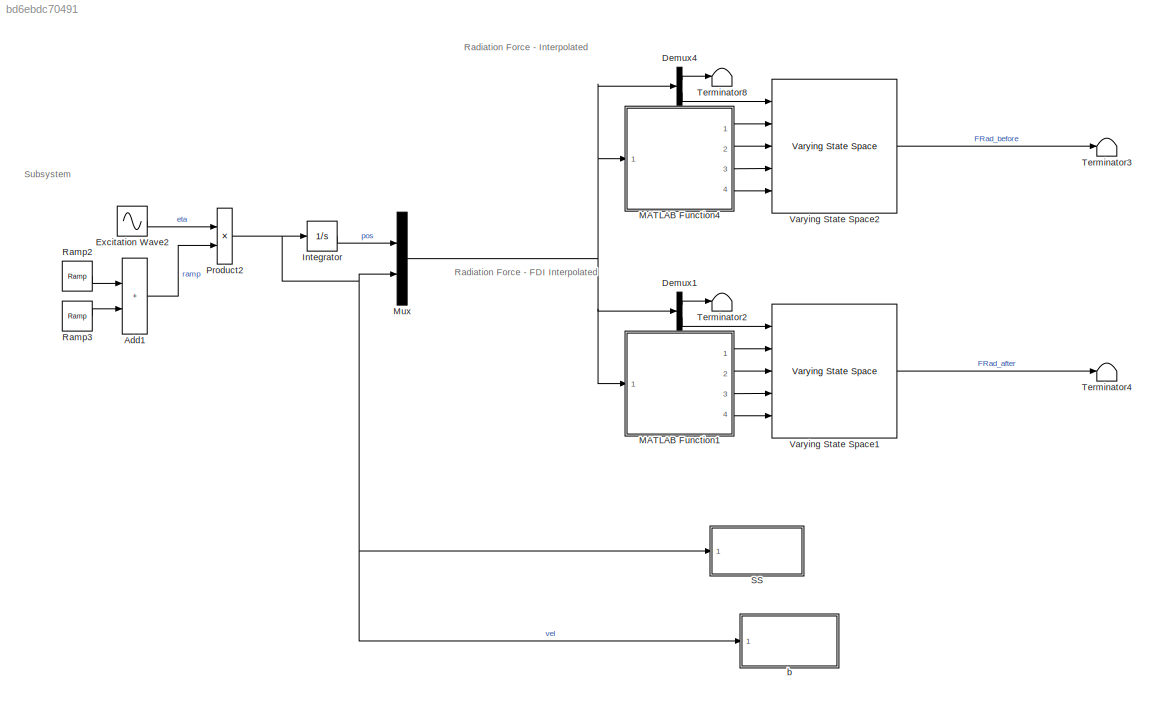
MODEL slx_bd6ebdc70491
KIND model
CONFIG AbsTol = auto
CONFIG EnableMultiTasking = off
CONFIG FixedStep = 0.01
CONFIG MaxStep = auto
CONFIG MinStep = auto
CONFIG RelTol = 1e-3
CONFIG SampleTimeConstraint = Unconstrained
CONFIG SolverName = ode3
CONFIG StartTime = 0.0
CONFIG StopTime = 30
BLOCK [Sum] Add1
  IconShape = rectangular
  Ports = [2, 1]
BLOCK [Demux] Demux1
  Commented = on
  Outputs = 2
  Ports = [1, 2]
BLOCK [Demux] Demux4
  Commented = on
  Outputs = 2
  Ports = [1, 2]
BLOCK [Sin] Excitation Wave2
  Frequency = w_Wave
  Ports = [0, 1]
  SampleTime = 0
BLOCK [Integrator] Integrator
  Ports = [1, 1]
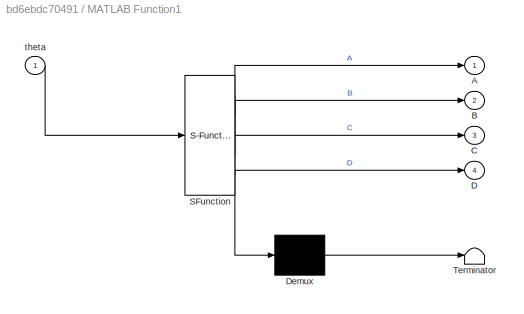
BLOCK [SubSystem] MATLAB Function1
  Commented = on
  ErrorFcn = Stateflow.Translate.translate
  PermitHierarchicalResolution = ExplicitOnly
  Ports = [1, 4]
  RequestExecContextInheritance = off
  SFBlockType = MATLAB Function
  TreatAsAtomicUnit = on
BLOCK [Demux] MATLAB Function1/ Demux 
  Outputs = 1
  Ports = [1, 1]
BLOCK [S-Function] MATLAB Function1/ SFunction 
  EnableBusSupport = on
  FunctionName = sf_sfun
  Parameters = aR2,bR2,hydroCoeff
  PortCounts = [1 5]
  Ports = [1, 5]
  SFcnIsStateOwnerBlock = off
  SFunctionDeploymentMode = off
  Tag = Stateflow S-Function 1
BLOCK [Terminator] MATLAB Function1/ Terminator 
BLOCK [Outport] MATLAB Function1/A
BLOCK [Outport] MATLAB Function1/B
  Port = 2
BLOCK [Outport] MATLAB Function1/C
  Port = 3
BLOCK [Outport] MATLAB Function1/D
  Port = 4
BLOCK [Inport] MATLAB Function1/theta
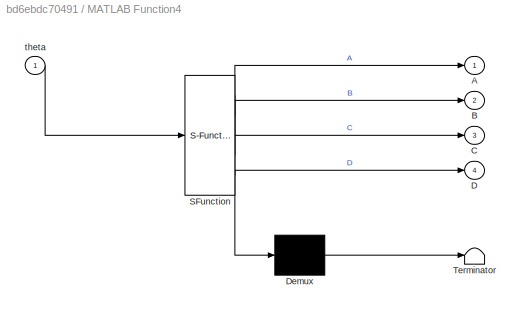
BLOCK [SubSystem] MATLAB Function4
  Commented = on
  ErrorFcn = Stateflow.Translate.translate
  PermitHierarchicalResolution = ExplicitOnly
  Ports = [1, 4]
  RequestExecContextInheritance = off
  SFBlockType = MATLAB Function
  TreatAsAtomicUnit = on
BLOCK [Demux] MATLAB Function4/ Demux 
  Outputs = 1
  Ports = [1, 1]
BLOCK [S-Function] MATLAB Function4/ SFunction 
  EnableBusSupport = on
  FunctionName = sf_sfun
  Parameters = aRInterp,bRInterp,hydroCoeff
  PortCounts = [1 5]
  Ports = [1, 5]
  SFcnIsStateOwnerBlock = off
  SFunctionDeploymentMode = off
  Tag = Stateflow S-Function 4
BLOCK [Terminator] MATLAB Function4/ Terminator 
BLOCK [Outport] MATLAB Function4/A
BLOCK [Outport] MATLAB Function4/B
  Port = 2
BLOCK [Outport] MATLAB Function4/C
  Port = 3
BLOCK [Outport] MATLAB Function4/D
  Port = 4
BLOCK [Inport] MATLAB Function4/theta
BLOCK [Mux] Mux
  DisplayOption = bar
  Inputs = 2
  Ports = [2, 1]
BLOCK [Product] Product2
  Ports = [2, 1]
BLOCK [Reference] Ramp2  REF=simulink/Sources/Ramp
  Ports = [0, 1]
  SourceBlock = simulink/Sources/Ramp
  SourceProductBaseCode = SL
  SourceType = Ramp
BLOCK [Reference] Ramp3  REF=simulink/Sources/Ramp
  Ports = [0, 1]
  SourceBlock = simulink/Sources/Ramp
  SourceProductBaseCode = SL
  SourceType = Ramp
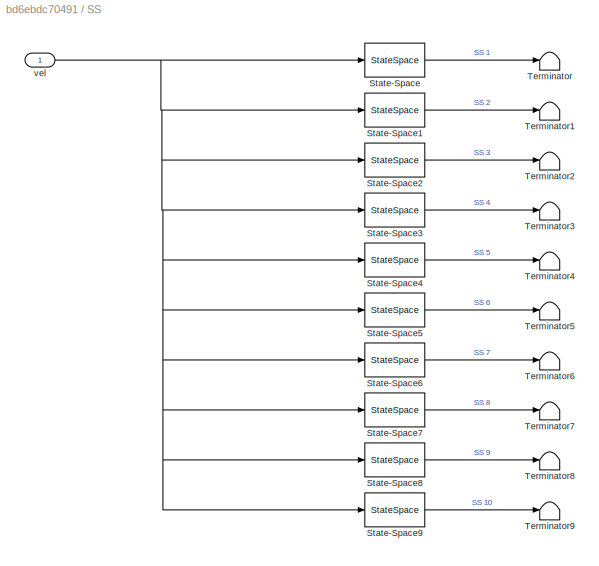
BLOCK [SubSystem] SS
  Ports = [1]
  RequestExecContextInheritance = off
BLOCK [StateSpace] SS/State-Space
  A = radA{1}
  B = radB{1}
  C = radC{1}
  D = 0
  InitialCondition = 0
  Ports = [1, 1]
BLOCK [StateSpace] SS/State-Space1
  A = radA{2}
  B = radB{2}
  C = radC{2}
  D = 0
  InitialCondition = 0
  Ports = [1, 1]
BLOCK [StateSpace] SS/State-Space2
  A = radA{3}
  B = radB{3}
  C = radC{3}
  D = 0
  InitialCondition = 0
  Ports = [1, 1]
BLOCK [StateSpace] SS/State-Space3
  A = radA{4}
  B = radB{4}
  C = radC{4}
  D = 0
  InitialCondition = 0
  Ports = [1, 1]
BLOCK [StateSpace] SS/State-Space4
  A = radA{5}
  B = radB{5}
  C = radC{5}
  D = 0
  InitialCondition = 0
  Ports = [1, 1]
BLOCK [StateSpace] SS/State-Space5
  A = radA{6}
  B = radB{6}
  C = radC{6}
  D = 0
  InitialCondition = 0
  Ports = [1, 1]
BLOCK [StateSpace] SS/State-Space6
  A = radA{7}
  B = radB{7}
  C = radC{7}
  D = 0
  InitialCondition = 0
  Ports = [1, 1]
BLOCK [StateSpace] SS/State-Space7
  A = radA{8}
  B = radB{8}
  C = radC{8}
  D = 0
  InitialCondition = 0
  Ports = [1, 1]
BLOCK [StateSpace] SS/State-Space8
  A = radA{9}
  B = radB{9}
  C = radC{9}
  D = 0
  InitialCondition = 0
  Ports = [1, 1]
BLOCK [StateSpace] SS/State-Space9
  A = radA{10}
  B = radB{10}
  C = radC{10}
  D = 0
  InitialCondition = 0
  Ports = [1, 1]
BLOCK [Terminator] SS/Terminator
BLOCK [Terminator] SS/Terminator1
BLOCK [Terminator] SS/Terminator2
BLOCK [Terminator] SS/Terminator3
BLOCK [Terminator] SS/Terminator4
BLOCK [Terminator] SS/Terminator5
BLOCK [Terminator] SS/Terminator6
BLOCK [Terminator] SS/Terminator7
BLOCK [Terminator] SS/Terminator8
BLOCK [Terminator] SS/Terminator9
BLOCK [Inport] SS/vel
BLOCK [Terminator] Terminator2
  Commented = on
BLOCK [Terminator] Terminator3
  Commented = on
BLOCK [Terminator] Terminator4
  Commented = on
BLOCK [Terminator] Terminator8
  Commented = on
BLOCK [Reference] Varying State Space1  REF=cstblocks/Linear Parameter Varying/Varying State Space
  Commented = on
  Ports = [5, 1]
  SourceBlock = cstblocks/Linear Parameter Varying/Varying State Space
  SourceProductBaseCode = CT
  SourceType = Varying State Space
BLOCK [Reference] Varying State Space2  REF=cstblocks/Linear Parameter Varying/Varying State Space
  Commented = on
  Ports = [5, 1]
  SourceBlock = cstblocks/Linear Parameter Varying/Varying State Space
  SourceProductBaseCode = CT
  SourceType = Varying State Space
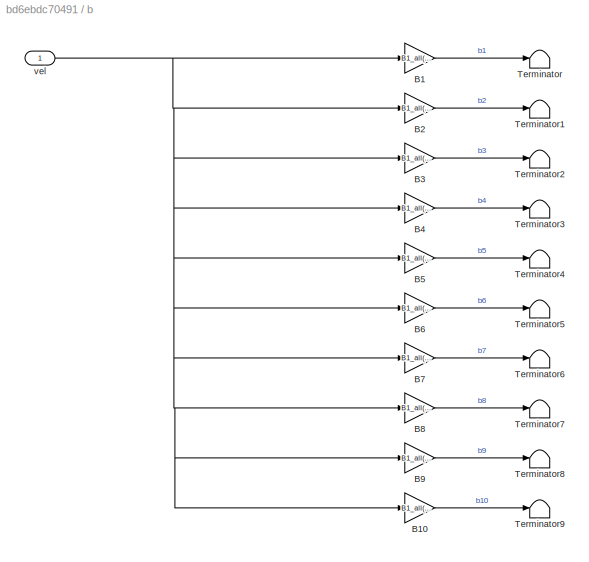
BLOCK [SubSystem] b
  Ports = [1]
  RequestExecContextInheritance = off
BLOCK [Gain] b/B1
  Gain = B1_all(w_WaveIndx,1)*w_Wave
BLOCK [Gain] b/B10
  Gain = B1_all(w_WaveIndx,10)*w_Wave
BLOCK [Gain] b/B2
  Gain = B1_all(w_WaveIndx,2)*w_Wave
BLOCK [Gain] b/B3
  Gain = B1_all(w_WaveIndx,3)*w_Wave
BLOCK [Gain] b/B4
  Gain = B1_all(w_WaveIndx,4)*w_Wave
BLOCK [Gain] b/B5
  Gain = B1_all(w_WaveIndx,5)*w_Wave
BLOCK [Gain] b/B6
  Gain = B1_all(w_WaveIndx,6)*w_Wave
BLOCK [Gain] b/B7
  Gain = B1_all(w_WaveIndx,7)*w_Wave
BLOCK [Gain] b/B8
  Gain = B1_all(w_WaveIndx,8)*w_Wave
BLOCK [Gain] b/B9
  Gain = B1_all(w_WaveIndx,9)*w_Wave
BLOCK [Terminator] b/Terminator
BLOCK [Terminator] b/Terminator1
BLOCK [Terminator] b/Terminator2
BLOCK [Terminator] b/Terminator3
BLOCK [Terminator] b/Terminator4
BLOCK [Terminator] b/Terminator5
BLOCK [Terminator] b/Terminator6
BLOCK [Terminator] b/Terminator7
BLOCK [Terminator] b/Terminator8
BLOCK [Terminator] b/Terminator9
BLOCK [Inport] b/vel
ANNOTATION (root): Radiation Force - FDI Interpolated
ANNOTATION (root): Radiation Force - Interpolated
ANNOTATION (root): Subsystem
LINE Add1:1 -> Product2:2
LINE Demux1:1 -> Terminator2:1
LINE Demux1:2 -> Varying State Space1:1
LINE Demux4:1 -> Terminator8:1
LINE Demux4:2 -> Varying State Space2:1
LINE Excitation Wave2:1 -> Product2:1
LINE Integrator:1 -> Mux:1
LINE MATLAB Function1:1 -> Varying State Space1:2
LINE MATLAB Function1:2 -> Varying State Space1:3
LINE MATLAB Function1:3 -> Varying State Space1:4
LINE MATLAB Function1:4 -> Varying State Space1:5
LINE MATLAB Function4:1 -> Varying State Space2:2
LINE MATLAB Function4:2 -> Varying State Space2:3
LINE MATLAB Function4:3 -> Varying State Space2:4
LINE MATLAB Function4:4 -> Varying State Space2:5
NET Mux:1 -> Demux1:1, Demux4:1, MATLAB Function1:1, MATLAB Function4:1
NET Product2:1 -> Integrator:1, Mux:2, SS:1, b:1
LINE Ramp2:1 -> Add1:1
LINE Ramp3:1 -> Add1:2
LINE SS/State-Space1:1 -> SS/Terminator1:1
LINE SS/State-Space2:1 -> SS/Terminator2:1
LINE SS/State-Space3:1 -> SS/Terminator3:1
LINE SS/State-Space4:1 -> SS/Terminator4:1
LINE SS/State-Space5:1 -> SS/Terminator5:1
LINE SS/State-Space6:1 -> SS/Terminator6:1
LINE SS/State-Space7:1 -> SS/Terminator7:1
LINE SS/State-Space8:1 -> SS/Terminator8:1
LINE SS/State-Space9:1 -> SS/Terminator9:1
LINE SS/State-Space:1 -> SS/Terminator:1
NET SS/vel:1 -> SS/State-Space1:1, SS/State-Space2:1, SS/State-Space3:1, SS/State-Space4:1, SS/State-Space5:1, SS/State-Space6:1, SS/State-Space7:1, SS/State-Space8:1, SS/State-Space9:1, SS/State-Space:1
LINE Varying State Space1:1 -> Terminator4:1
LINE Varying State Space2:1 -> Terminator3:1
LINE b/B10:1 -> b/Terminator9:1
LINE b/B1:1 -> b/Terminator:1
LINE b/B2:1 -> b/Terminator1:1
LINE b/B3:1 -> b/Terminator2:1
LINE b/B4:1 -> b/Terminator3:1
LINE b/B5:1 -> b/Terminator4:1
LINE b/B6:1 -> b/Terminator5:1
LINE b/B7:1 -> b/Terminator6:1
LINE b/B8:1 -> b/Terminator7:1
LINE b/B9:1 -> b/Terminator8:1
NET b/vel:1 -> b/B10:1, b/B1:1, b/B2:1, b/B3:1, b/B4:1, b/B5:1, b/B6:1, b/B7:1, b/B8:1, b/B9:1
note: NET lines group one-source signal fan-out (src -> all destinations, sorted); 1:1 wires keep LINE
CHART MATLAB Function1 states=1 transitions=1
  STATE_LABEL 'eML_blk_kernel()'
  STATE_LABEL 'SCRIPT:\nfunction [A,B,C,D] = RadTFCoeffs(theta, hydroCoeff, aR2, bR2)\n% This function extracts the coefficients of the Radiation Transfer\n% Function based on previously fitted data between discretized thetas. \n\n% Inputs: \n% theta0      = current states condition\n% hydrovCoeff = time-variable hydrodynamic coefficients\n% thetaN      = pitch angle index\n\n% Outputs: \n% bR    = numerator \n% aR    = den...<+1022ch>'
CHART MATLAB Function4 states=1 transitions=1
  STATE_LABEL 'eML_blk_kernel()'
  STATE_LABEL 'SCRIPT:\nfunction [A,B,C,D] = RadTFCoeffs(theta, hydroCoeff, aRInterp, bRInterp)\n% This function extracts the coefficients of the Radiation Transfer\n% Function based on previously fitted data between discretized thetas. \n\n% Inputs: \n% theta0      = current states condition\n% hydrovCoeff = time-variable hydrodynamic coefficients\n% thetaN      = pitch angle index\n\n% Outputs: \n% bR    = numerator \n% a...<+771ch>'
CHART  states=0 transitions=0
CHART  states=0 transitions=0
